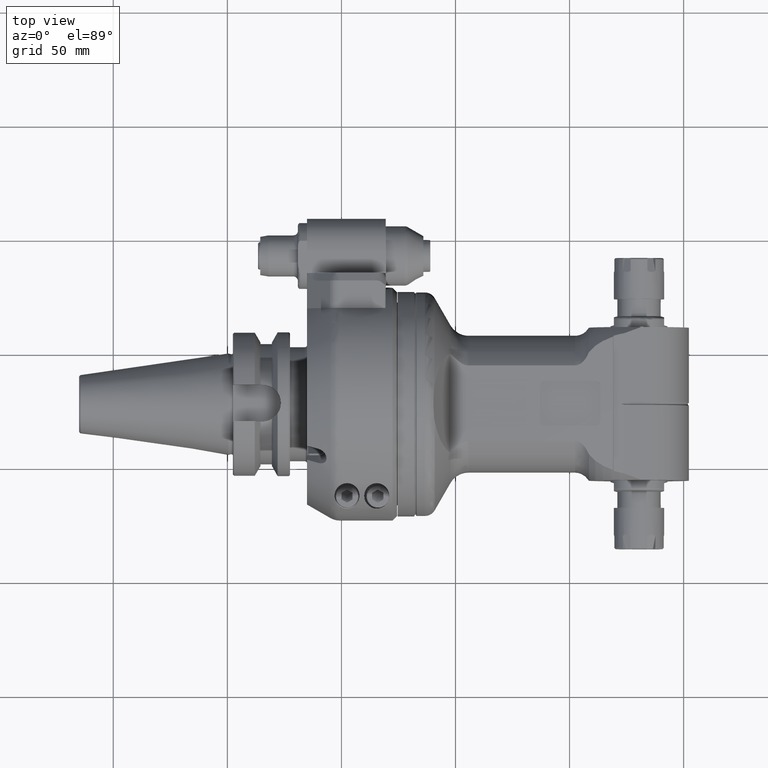
[diagram: clean part render]
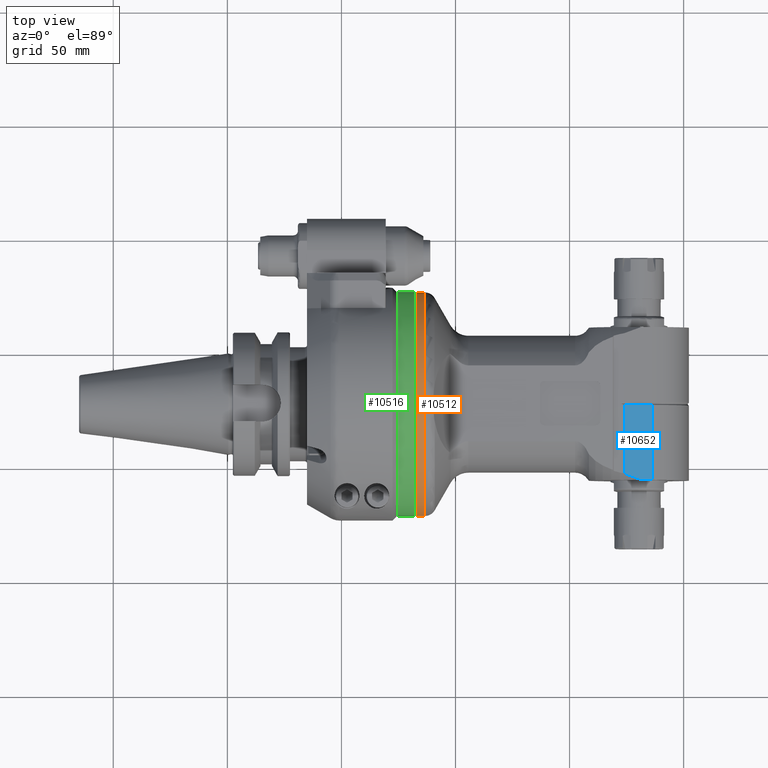
[diagram: same view with three faces highlighted in distinct colors, each labeled with its STEP entity id]
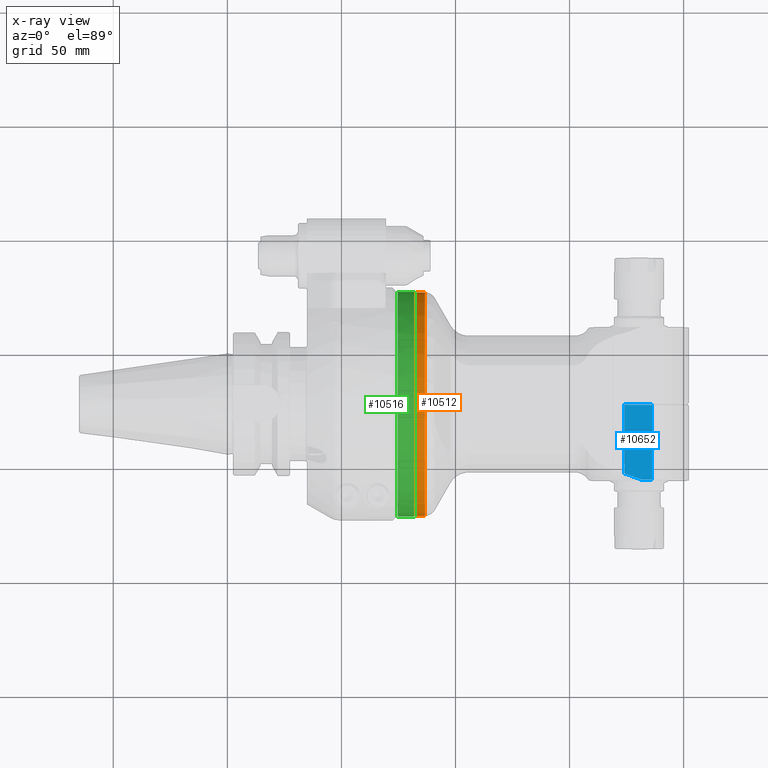
[diagram: x-ray of the same camera — body ghosted, the three highlighted faces saturated]
A machine part, top view with three faces highlighted in distinct colors.
The next image is the same camera in x-ray (body ghosted, the three faces saturated) — at least one of them is partly hidden behind the body in this view.
Their STEP definitions:

[orange] entity #10512 — the highlighted cylindrical surface (bore or boss wall) has radius 49 mm, axis along (-1, -0, 0).
#355=CYLINDRICAL_SURFACE('',#11245,1.92913385826772);
#519=CIRCLE('',#11243,1.92913385826772);
#521=CIRCLE('',#11246,1.92913385826772);
#522=CIRCLE('',#11247,1.92913385826772);
#1231=FACE_OUTER_BOUND('',#1892,.T.);
#1892=EDGE_LOOP('',(#7009,#7010,#7011,#7012,#7013));
#2809=LINE('',#15770,#3536);
#3536=VECTOR('',#12507,1.92913385826772);
#4303=VERTEX_POINT('',#15762);
#4304=VERTEX_POINT('',#15766);
#4305=VERTEX_POINT('',#15767);
#5377=EDGE_CURVE('',#4303,#4303,#519,.T.);
#5379=EDGE_CURVE('',#4304,#4305,#521,.T.);
#5380=EDGE_CURVE('',#4305,#4304,#522,.T.);
#5381=EDGE_CURVE('',#4305,#4303,#2809,.T.);
#7009=ORIENTED_EDGE('',*,*,#5379,.F.);
#7010=ORIENTED_EDGE('',*,*,#5380,.F.);
#7011=ORIENTED_EDGE('',*,*,#5381,.T.);
#7012=ORIENTED_EDGE('',*,*,#5377,.F.);
#7013=ORIENTED_EDGE('',*,*,#5381,.F.);
#10512=ADVANCED_FACE('',(#1231),#355,.T.);
#11243=AXIS2_PLACEMENT_3D('',#15763,#12497,#12498);
#11245=AXIS2_PLACEMENT_3D('',#15765,#12501,#12502);
#11246=AXIS2_PLACEMENT_3D('',#15768,#12503,#12504);
#11247=AXIS2_PLACEMENT_3D('',#15769,#12505,#12506);
#12497=DIRECTION('center_axis',(1.,0.,0.));
#12498=DIRECTION('ref_axis',(0.,-1.,0.));
#12501=DIRECTION('center_axis',(-1.,0.,0.));
#12502=DIRECTION('ref_axis',(0.,1.,0.));
#12503=DIRECTION('center_axis',(-1.,0.,0.));
#12504=DIRECTION('ref_axis',(0.,1.,0.));
#12505=DIRECTION('center_axis',(-1.,0.,0.));
#12506=DIRECTION('ref_axis',(0.,1.,0.));
#12507=DIRECTION('',(1.,0.,0.));
#15762=CARTESIAN_POINT('',(0.476899555067323,-1.92913385826772,2.36250760465434E-16));
#15763=CARTESIAN_POINT('Origin',(0.476899555067323,0.,0.));
#15765=CARTESIAN_POINT('Origin',(2.15369588582677,0.,0.));
#15766=CARTESIAN_POINT('',(0.334645669291339,1.92913385826772,0.));
#15767=CARTESIAN_POINT('',(0.334645669291339,-1.92913385826772,2.36250760465434E-16));
#15768=CARTESIAN_POINT('Origin',(0.334645669291339,0.,0.));
#15769=CARTESIAN_POINT('Origin',(0.334645669291339,0.,0.));
#15770=CARTESIAN_POINT('',(2.15369588582677,-1.92913385826772,2.36250760465434E-16));

[blue] entity #10652 — the highlighted planar face has unit normal (-0.2588, 0, -0.9659).
#100=(
BOUNDED_CURVE()
B_SPLINE_CURVE(2,(#16801,#16802,#16803),.UNSPECIFIED.,.F.,.F.)
B_SPLINE_CURVE_WITH_KNOTS((3,3),(0.608380908925387,0.668690733130071),
 .UNSPECIFIED.)
CURVE()
GEOMETRIC_REPRESENTATION_ITEM()
RATIONAL_B_SPLINE_CURVE((1.05761844635322,1.0576184463532,1.05705222464714))
REPRESENTATION_ITEM('')
);
#1371=FACE_OUTER_BOUND('',#2069,.T.);
#2069=EDGE_LOOP('',(#7697,#7698,#7699,#7700,#7701,#7702));
#2935=LINE('',#16696,#3662);
#2937=LINE('',#16724,#3664);
#2945=LINE('',#16798,#3672);
#2946=LINE('',#16805,#3673);
#3662=VECTOR('',#13141,0.393700787401575);
#3664=VECTOR('',#13163,0.393700787401575);
#3672=VECTOR('',#13217,1.29268955019882);
#3673=VECTOR('',#13222,0.4724409448819);
#4269=ELLIPSE('',#11536,10.9405200682111,2.41085690114816);
#4535=VERTEX_POINT('',#16693);
#4536=VERTEX_POINT('',#16695);
#4542=VERTEX_POINT('',#16721);
#4543=VERTEX_POINT('',#16723);
#4555=VERTEX_POINT('',#16793);
#4556=VERTEX_POINT('',#16800);
#5702=EDGE_CURVE('',#4535,#4536,#2935,.T.);
#5713=EDGE_CURVE('',#4543,#4542,#2937,.T.);
#5738=EDGE_CURVE('',#4555,#4535,#2945,.T.);
#5739=EDGE_CURVE('',#4556,#4543,#100,.T.);
#5740=EDGE_CURVE('',#4542,#4536,#4269,.T.);
#5741=EDGE_CURVE('',#4555,#4556,#2946,.T.);
#7697=ORIENTED_EDGE('',*,*,#5739,.T.);
#7698=ORIENTED_EDGE('',*,*,#5713,.T.);
#7699=ORIENTED_EDGE('',*,*,#5740,.T.);
#7700=ORIENTED_EDGE('',*,*,#5702,.F.);
#7701=ORIENTED_EDGE('',*,*,#5738,.F.);
#7702=ORIENTED_EDGE('',*,*,#5741,.T.);
#10240=PLANE('',#11535);
#10652=ADVANCED_FACE('',(#1371),#10240,.F.);
#11535=AXIS2_PLACEMENT_3D('',#16799,#13218,#13219);
#11536=AXIS2_PLACEMENT_3D('',#16804,#13220,#13221);
#13141=DIRECTION('',(-0.965925826289076,0.,0.258819045102493));
#13163=DIRECTION('',(0.,-1.,0.));
#13217=DIRECTION('',(-1.125292936299E-14,-1.,0.));
#13218=DIRECTION('center_axis',(-0.258819045102493,0.,-0.965925826289076));
#13219=DIRECTION('ref_axis',(-0.965925826289076,0.,0.258819045102493));
#13220=DIRECTION('center_axis',(0.258819045102493,0.,0.965925826289076));
#13221=DIRECTION('ref_axis',(0.965925826289076,3.19616015517442E-16,-0.258819045102494));
#13222=DIRECTION('',(-0.96592582466048,-1.25847124017997E-8,0.258819051180495));
#16693=CARTESIAN_POINT('',(4.3974023225315,-1.31889763779528,0.83662866843937));
#16695=CARTESIAN_POINT('',(4.21643947035398,-1.3188976377953,0.885117518539913));
#16696=CARTESIAN_POINT('',(4.50762772157898,-1.31889763779528,0.807093861778771));
#16721=CARTESIAN_POINT('',(3.91993023338583,-1.20908685662323,0.964566929133858));
#16723=CARTESIAN_POINT('',(3.91993023338601,-0.0257019511698411,0.964566929133858));
#16724=CARTESIAN_POINT('',(3.91993023338601,-0.65944881889764,0.964566929133858));
#16793=CARTESIAN_POINT('',(4.3974023225315,-0.0262080875964252,0.83662866843937));
#16798=CARTESIAN_POINT('',(4.3974023225315,-0.0262080875964252,0.83662866843937));
#16799=CARTESIAN_POINT('Origin',(3.84646466630787,-1.31889763779528,0.984251968503937));
#16800=CARTESIAN_POINT('',(3.94105941279382,-0.0262080908261462,0.958905383866809));
#16801=CARTESIAN_POINT('Ctrl Pts',(3.94105941247085,-0.0262080875963922,
0.958905382661342));
#16802=CARTESIAN_POINT('Ctrl Pts',(3.93050047893784,-0.0262080875963814,
0.961734640374446));
#16803=CARTESIAN_POINT('Ctrl Pts',(3.91993023338596,-0.0257019511698383,
0.964566929133872));
#16804=CARTESIAN_POINT('Origin',(13.062576369637,-3.49676543189026E-16,
-1.48519771975785));
#16805=CARTESIAN_POINT('',(4.3974023225315,-0.0262080875964252,0.83662866843937));

[green] entity #10516 — the highlighted cylindrical surface (bore or boss wall) has radius 49.2 mm, axis along (1, 0, -0).
#356=CYLINDRICAL_SURFACE('',#11255,1.93700787401575);
#526=CIRCLE('',#11254,1.93700787401575);
#527=CIRCLE('',#11256,1.93700787401575);
#1235=FACE_OUTER_BOUND('',#1897,.T.);
#1897=EDGE_LOOP('',(#7027,#7028,#7029,#7030));
#2812=LINE('',#15786,#3539);
#3539=VECTOR('',#12526,1.93700787401575);
#4309=VERTEX_POINT('',#15782);
#4310=VERTEX_POINT('',#15785);
#5387=EDGE_CURVE('',#4309,#4309,#526,.T.);
#5388=EDGE_CURVE('',#4309,#4310,#2812,.T.);
#5389=EDGE_CURVE('',#4310,#4310,#527,.T.);
#7027=ORIENTED_EDGE('',*,*,#5387,.F.);
#7028=ORIENTED_EDGE('',*,*,#5388,.T.);
#7029=ORIENTED_EDGE('',*,*,#5389,.T.);
#7030=ORIENTED_EDGE('',*,*,#5388,.F.);
#10516=ADVANCED_FACE('',(#1235),#356,.T.);
#11254=AXIS2_PLACEMENT_3D('',#15783,#12522,#12523);
#11255=AXIS2_PLACEMENT_3D('',#15784,#12524,#12525);
#11256=AXIS2_PLACEMENT_3D('',#15787,#12527,#12528);
#12522=DIRECTION('center_axis',(1.,0.,0.));
#12523=DIRECTION('ref_axis',(0.,1.,0.));
#12524=DIRECTION('center_axis',(1.,0.,0.));
#12525=DIRECTION('ref_axis',(0.,-1.,0.));
#12526=DIRECTION('',(-1.,0.,0.));
#12527=DIRECTION('center_axis',(1.,0.,0.));
#12528=DIRECTION('ref_axis',(0.,1.,0.));
#15782=CARTESIAN_POINT('',(0.295275590551181,1.93700787401575,-2.08411067246358E-15));
#15783=CARTESIAN_POINT('Origin',(0.295275590551181,0.,-2.32132572174724E-15));
#15784=CARTESIAN_POINT('Origin',(-0.00649606299212598,0.,-2.32132572174724E-15));
#15785=CARTESIAN_POINT('',(0.0078740157480315,1.93700787401575,-2.08411067246358E-15));
#15786=CARTESIAN_POINT('',(-0.00649606299212598,1.93700787401575,-2.08411067246358E-15));
#15787=CARTESIAN_POINT('Origin',(0.0078740157480315,0.,-2.32132572174724E-15));